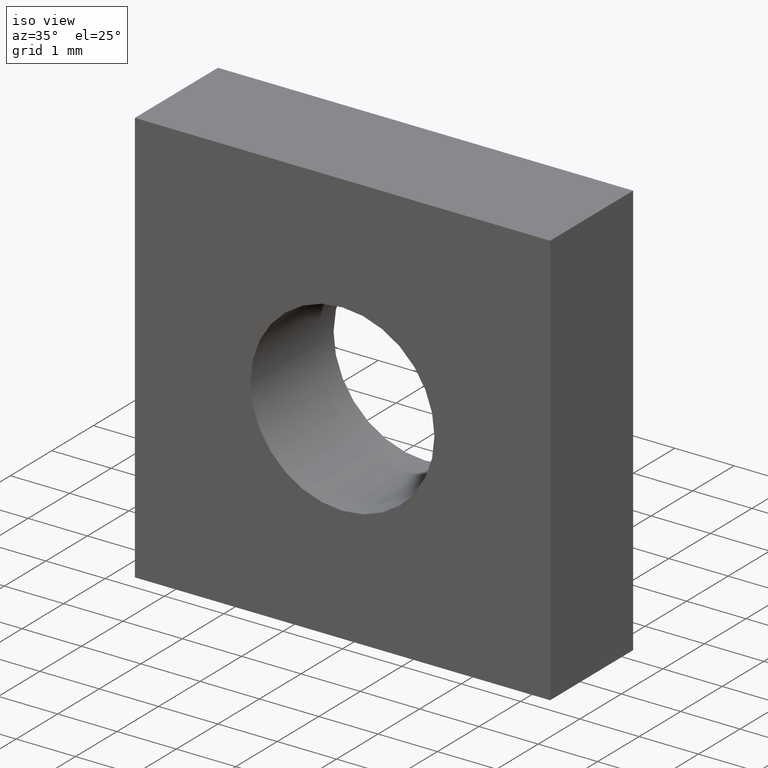
[diagram: clean part render]
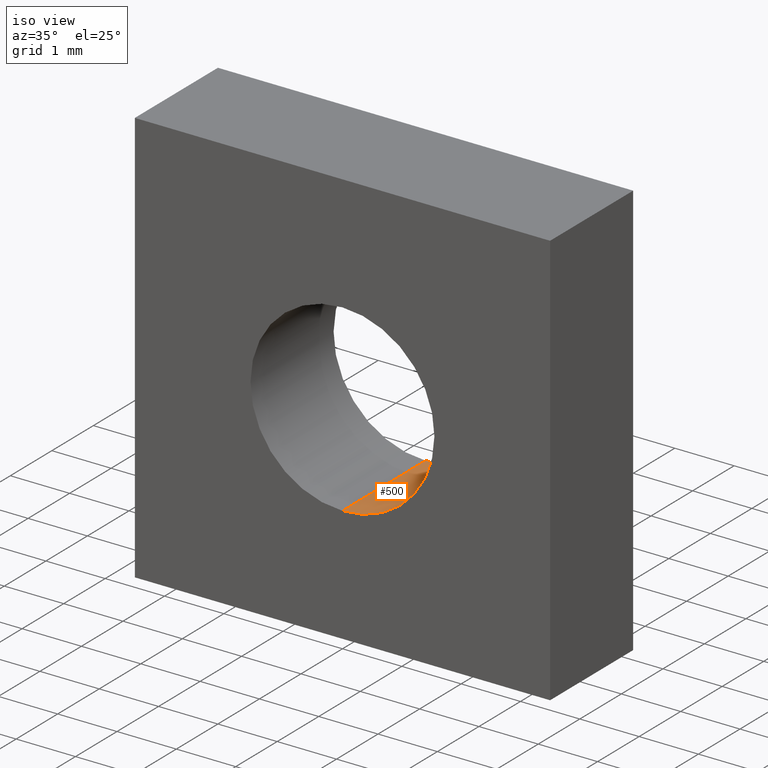
[diagram: same view with one face highlighted and labeled with its STEP entity id]
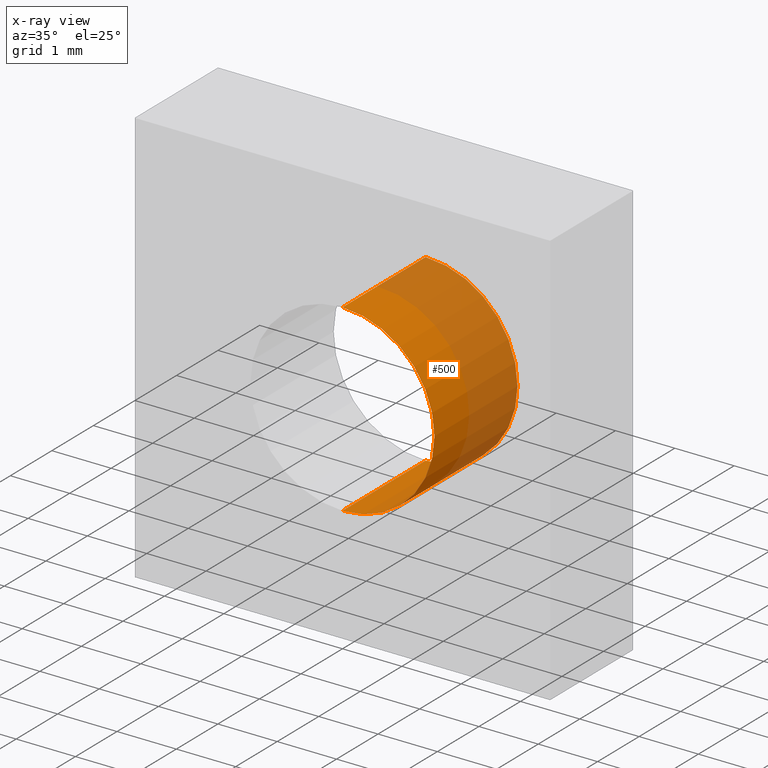
[diagram: x-ray of the same camera — body ghosted, the highlighted face saturated]
A machine part, iso view. The second image highlights one B-rep face of the part: STEP entity #500.
The next image is the same camera in x-ray: the body ghosted, the highlighted face saturated — about 53% of this face is hidden behind the body in this view.
In plain terms, the highlighted cylindrical surface (partial cylindrical patch) has radius 1.55 mm, axis along (-0, 1, -0).
Its self-contained STEP definition (entity closure, byte-faithful):
#21 = VECTOR ( 'NONE', #46, 1000.000000000000000 ) ;
#34 = VERTEX_POINT ( 'NONE', #429 ) ;
#46 = DIRECTION ( 'NONE',  ( -0.0000000000000000000, 1.000000000000000000, -0.0000000000000000000 ) ) ;
#85 = ORIENTED_EDGE ( 'NONE', *, *, #181, .T. ) ;
#89 = VERTEX_POINT ( 'NONE', #359 ) ;
#106 = DIRECTION ( 'NONE',  ( -0.0000000000000000000, 1.000000000000000000, 0.0000000000000000000 ) ) ;
#121 = CARTESIAN_POINT ( 'NONE',  ( 1.898202538678397500E-016, 0.0000000000000000000, -1.550000000000000000 ) ) ;
#130 = VERTEX_POINT ( 'NONE', #172 ) ;
#142 = ORIENTED_EDGE ( 'NONE', *, *, #485, .T. ) ;
#150 = DIRECTION ( 'NONE',  ( 0.0000000000000000000, 0.0000000000000000000, 1.000000000000000000 ) ) ;
#154 = DIRECTION ( 'NONE',  ( -0.0000000000000000000, 1.000000000000000000, 0.0000000000000000000 ) ) ;
#158 = DIRECTION ( 'NONE',  ( -0.0000000000000000000, 1.000000000000000000, -0.0000000000000000000 ) ) ;
#168 = LINE ( 'NONE', #354, #395 ) ;
#172 = CARTESIAN_POINT ( 'NONE',  ( 0.0000000000000000000, 0.0000000000000000000, 1.550000000000000000 ) ) ;
#181 = EDGE_CURVE ( 'NONE', #89, #34, #366, .T. ) ;
#195 = CARTESIAN_POINT ( 'NONE',  ( 0.0000000000000000000, -7.999900000000001100, 1.550000000000000000 ) ) ;
#200 = CARTESIAN_POINT ( 'NONE',  ( 0.0000000000000000000, -7.999900000000001100, 0.0000000000000000000 ) ) ;
#211 = DIRECTION ( 'NONE',  ( 0.0000000000000000000, 0.0000000000000000000, 1.000000000000000000 ) ) ;
#213 = ORIENTED_EDGE ( 'NONE', *, *, #302, .F. ) ;
#229 = DIRECTION ( 'NONE',  ( -0.0000000000000000000, 1.000000000000000000, -0.0000000000000000000 ) ) ;
#237 = DIRECTION ( 'NONE',  ( 0.0000000000000000000, 0.0000000000000000000, 1.000000000000000000 ) ) ;
#243 = LINE ( 'NONE', #195, #21 ) ;
#288 = AXIS2_PLACEMENT_3D ( 'NONE', #478, #106, #150 ) ;
#295 = CYLINDRICAL_SURFACE ( 'NONE', #360, 1.550000000000000000 ) ;
#302 = EDGE_CURVE ( 'NONE', #488, #34, #168, .T. ) ;
#338 = AXIS2_PLACEMENT_3D ( 'NONE', #447, #154, #237 ) ;
#352 = FACE_OUTER_BOUND ( 'NONE', #388, .T. ) ;
#354 = CARTESIAN_POINT ( 'NONE',  ( 1.898202538678397500E-016, -7.999900000000001100, -1.550000000000000000 ) ) ;
#359 = CARTESIAN_POINT ( 'NONE',  ( 0.0000000000000000000, 2.000000000000000000, 1.550000000000000000 ) ) ;
#360 = AXIS2_PLACEMENT_3D ( 'NONE', #200, #158, #211 ) ;
#366 = CIRCLE ( 'NONE', #288, 1.550000000000000000 ) ;
#379 = EDGE_CURVE ( 'NONE', #130, #488, #446, .T. ) ;
#388 = EDGE_LOOP ( 'NONE', ( #213, #405, #142, #85 ) ) ;
#395 = VECTOR ( 'NONE', #229, 1000.000000000000000 ) ;
#405 = ORIENTED_EDGE ( 'NONE', *, *, #379, .F. ) ;
#429 = CARTESIAN_POINT ( 'NONE',  ( 1.898202538678397500E-016, 2.000000000000000000, -1.550000000000000000 ) ) ;
#446 = CIRCLE ( 'NONE', #338, 1.550000000000000000 ) ;
#447 = CARTESIAN_POINT ( 'NONE',  ( 0.0000000000000000000, 0.0000000000000000000, 0.0000000000000000000 ) ) ;
#478 = CARTESIAN_POINT ( 'NONE',  ( 0.0000000000000000000, 2.000000000000000000, 0.0000000000000000000 ) ) ;
#485 = EDGE_CURVE ( 'NONE', #130, #89, #243, .T. ) ;
#488 = VERTEX_POINT ( 'NONE', #121 ) ;
#500 = ADVANCED_FACE ( 'NONE', ( #352 ), #295, .F. ) ;